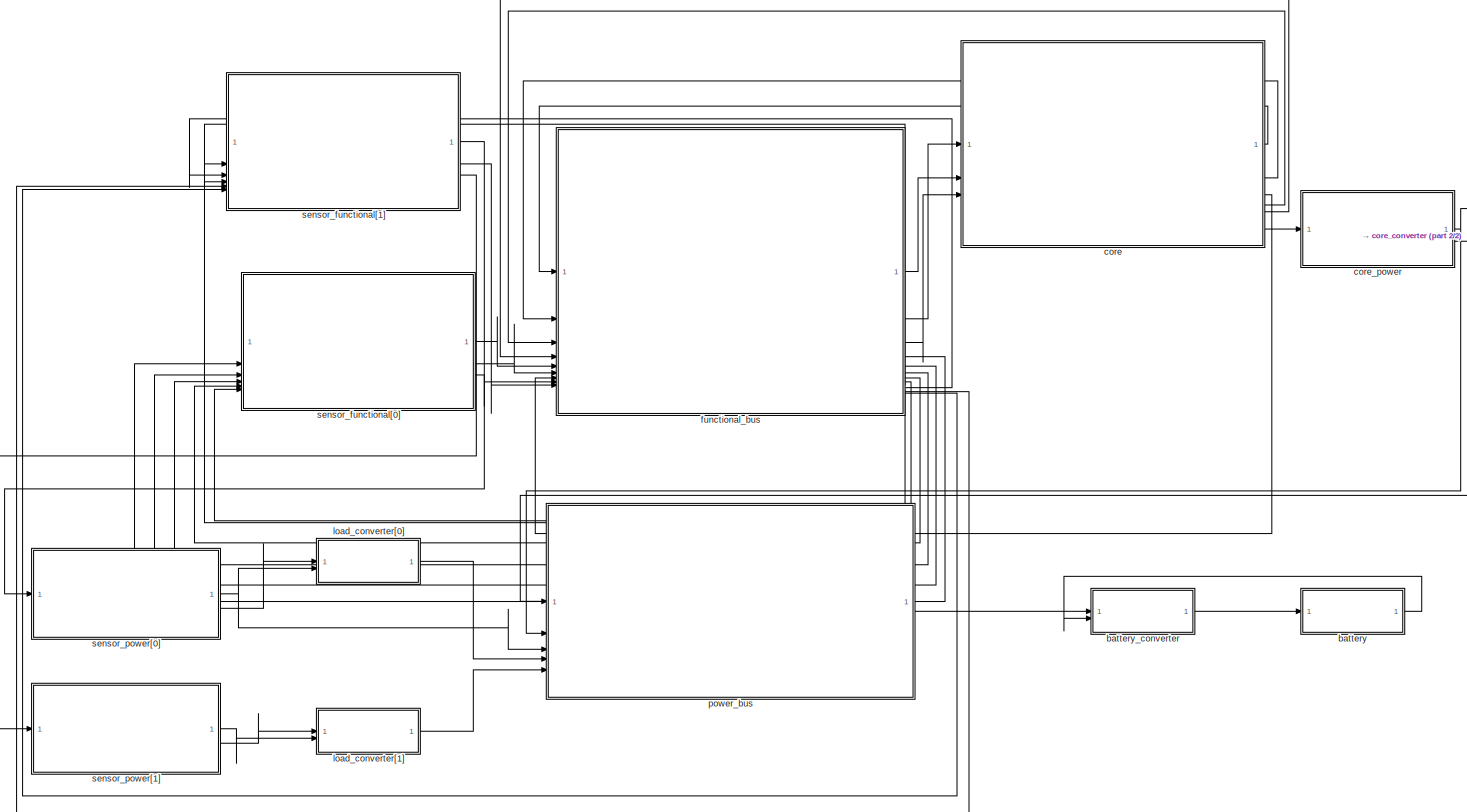
[diagram: root canvas - part 1/2, most of the canvas]
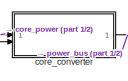
[diagram: root canvas - part 2/2, top right region]
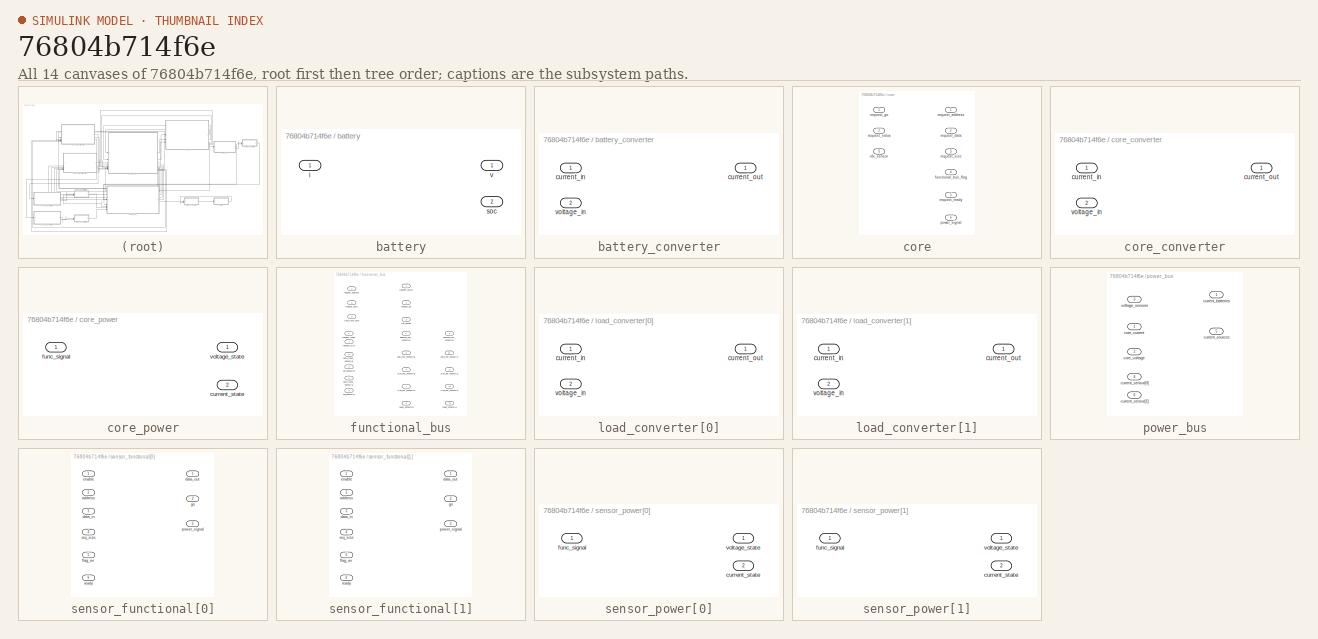
[diagram: thumbnail index - all 14 canvases of the model, root first then tree order]
MODEL slx_76804b714f6e
KIND model
CONFIG AbsTol = auto
CONFIG EnableMultiTasking = off
CONFIG FixedStep = auto
CONFIG MaxStep = auto
CONFIG MinStep = auto
CONFIG RelTol = 1e-3
CONFIG SampleTimeConstraint = Unconstrained
CONFIG SolverName = VariableStepAuto
CONFIG StartTime = 0.0
CONFIG StopTime = 10.0
BLOCK [SubSystem] battery
BLOCK [Inport] battery/i
BLOCK [Outport] battery/soc
  Port = 2
BLOCK [Outport] battery/v
BLOCK [SubSystem] battery_converter
BLOCK [Inport] battery_converter/current_in
BLOCK [Outport] battery_converter/current_out
BLOCK [Inport] battery_converter/voltage_in
  Port = 2
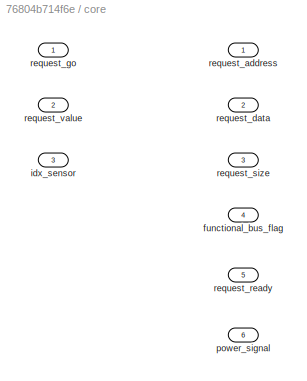
BLOCK [SubSystem] core
BLOCK [Outport] core/functional_bus_flag
  Port = 4
BLOCK [Inport] core/idx_sensor
  Port = 3
BLOCK [Outport] core/power_signal
  Port = 6
BLOCK [Outport] core/request_address
BLOCK [Outport] core/request_data
  Port = 2
BLOCK [Inport] core/request_go
BLOCK [Outport] core/request_ready
  Port = 5
BLOCK [Outport] core/request_size
  Port = 3
BLOCK [Inport] core/request_value
  Port = 2
BLOCK [SubSystem] core_converter
BLOCK [Inport] core_converter/current_in
BLOCK [Outport] core_converter/current_out
BLOCK [Inport] core_converter/voltage_in
  Port = 2
BLOCK [SubSystem] core_power
BLOCK [Outport] core_power/current_state
  Port = 2
BLOCK [Inport] core_power/func_signal
BLOCK [Outport] core_power/voltage_state
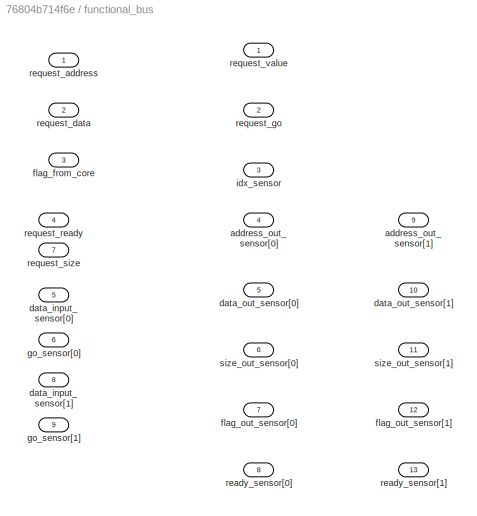
BLOCK [SubSystem] functional_bus
BLOCK [Outport] functional_bus/address_out_sensor[0]
  Port = 4
BLOCK [Outport] functional_bus/address_out_sensor[1]
  Port = 9
BLOCK [Inport] functional_bus/data_input_sensor[0]
  Port = 5
BLOCK [Inport] functional_bus/data_input_sensor[1]
  Port = 8
BLOCK [Outport] functional_bus/data_out_sensor[0]
  Port = 5
BLOCK [Outport] functional_bus/data_out_sensor[1]
  Port = 10
BLOCK [Inport] functional_bus/flag_from_core
  Port = 3
BLOCK [Outport] functional_bus/flag_out_sensor[0]
  Port = 7
BLOCK [Outport] functional_bus/flag_out_sensor[1]
  Port = 12
BLOCK [Inport] functional_bus/go_sensor[0]
  Port = 6
BLOCK [Inport] functional_bus/go_sensor[1]
  Port = 9
BLOCK [Outport] functional_bus/idx_sensor
  Port = 3
BLOCK [Outport] functional_bus/ready_sensor[0]
  Port = 8
BLOCK [Outport] functional_bus/ready_sensor[1]
  Port = 13
BLOCK [Inport] functional_bus/request_address
BLOCK [Inport] functional_bus/request_data
  Port = 2
BLOCK [Outport] functional_bus/request_go
  Port = 2
BLOCK [Inport] functional_bus/request_ready
  Port = 4
BLOCK [Inport] functional_bus/request_size
  Port = 7
BLOCK [Outport] functional_bus/request_value
BLOCK [Outport] functional_bus/size_out_sensor[0]
  Port = 6
BLOCK [Outport] functional_bus/size_out_sensor[1]
  Port = 11
BLOCK [SubSystem] load_converter[0]
BLOCK [Inport] load_converter[0]/current_in
BLOCK [Outport] load_converter[0]/current_out
BLOCK [Inport] load_converter[0]/voltage_in
  Port = 2
BLOCK [SubSystem] load_converter[1]
BLOCK [Inport] load_converter[1]/current_in
BLOCK [Outport] load_converter[1]/current_out
BLOCK [Inport] load_converter[1]/voltage_in
  Port = 2
BLOCK [SubSystem] power_bus
  ShowPortLabels = FromPortBlockName
BLOCK [Inport] power_bus/core_current
BLOCK [Inport] power_bus/core_voltage
  Port = 2
BLOCK [Outport] power_bus/current_batteries
BLOCK [Inport] power_bus/current_sensor[0]
  Port = 4
BLOCK [Inport] power_bus/current_sensor[1]
  Port = 6
BLOCK [Inport] power_bus/current_sources
  Port = 5
BLOCK [Inport] power_bus/voltage_sensors
  Port = 3
BLOCK [SubSystem] sensor_functional[0]
BLOCK [Inport] sensor_functional[0]/address
  Port = 2
BLOCK [Inport] sensor_functional[0]/data_in
  Port = 3
BLOCK [Outport] sensor_functional[0]/data_out
BLOCK [Inport] sensor_functional[0]/enable
BLOCK [Inport] sensor_functional[0]/flag_wr
  Port = 5
BLOCK [Outport] sensor_functional[0]/go
  Port = 2
BLOCK [Outport] sensor_functional[0]/power_signal
  Port = 3
BLOCK [Inport] sensor_functional[0]/ready
  Port = 6
BLOCK [Inport] sensor_functional[0]/req_size
  Port = 4
BLOCK [SubSystem] sensor_functional[1]
BLOCK [Inport] sensor_functional[1]/address
  Port = 2
BLOCK [Inport] sensor_functional[1]/data_in
  Port = 3
BLOCK [Outport] sensor_functional[1]/data_out
BLOCK [Inport] sensor_functional[1]/enable
BLOCK [Inport] sensor_functional[1]/flag_wr
  Port = 5
BLOCK [Outport] sensor_functional[1]/go
  Port = 2
BLOCK [Outport] sensor_functional[1]/power_signal
  Port = 3
BLOCK [Inport] sensor_functional[1]/ready
  Port = 6
BLOCK [Inport] sensor_functional[1]/req_size
  Port = 4
BLOCK [SubSystem] sensor_power[0]
BLOCK [Outport] sensor_power[0]/current_state
  Port = 2
BLOCK [Inport] sensor_power[0]/func_signal
BLOCK [Outport] sensor_power[0]/voltage_state
BLOCK [SubSystem] sensor_power[1]
BLOCK [Outport] sensor_power[1]/current_state
  Port = 2
BLOCK [Inport] sensor_power[1]/func_signal
BLOCK [Outport] sensor_power[1]/voltage_state
LINE battery:1 -> battery_converter:2
LINE battery_converter:1 -> battery:1
LINE core:1 -> functional_bus:1
LINE core:2 -> functional_bus:2
LINE core:3 -> functional_bus:7
LINE core:4 -> functional_bus:3
LINE core:5 -> functional_bus:4
LINE core:6 -> core_power:1
LINE core_converter:1 -> power_bus:1
NET core_power:1 -> core_converter:2, power_bus:2
LINE core_power:2 -> core_converter:1
LINE functional_bus:1 -> core:2
LINE functional_bus:10 -> sensor_functional[1]:3
LINE functional_bus:11 -> sensor_functional[1]:4
LINE functional_bus:12 -> sensor_functional[1]:5
LINE functional_bus:13 -> sensor_functional[1]:6
LINE functional_bus:2 -> core:1
LINE functional_bus:3 -> core:3
LINE functional_bus:4 -> sensor_functional[0]:2
LINE functional_bus:5 -> sensor_functional[0]:3
LINE functional_bus:6 -> sensor_functional[0]:4
LINE functional_bus:7 -> sensor_functional[0]:5
LINE functional_bus:8 -> sensor_functional[0]:6
LINE functional_bus:9 -> sensor_functional[1]:2
LINE load_converter[0]:1 -> power_bus:4
LINE load_converter[1]:1 -> power_bus:6
LINE power_bus:1 -> battery_converter:1
LINE sensor_functional[0]:1 -> functional_bus:5
LINE sensor_functional[0]:2 -> functional_bus:6
LINE sensor_functional[0]:3 -> sensor_power[0]:1
LINE sensor_functional[1]:1 -> functional_bus:8
LINE sensor_functional[1]:2 -> functional_bus:9
LINE sensor_functional[1]:3 -> sensor_power[1]:1
NET sensor_power[0]:1 -> load_converter[0]:2, power_bus:3
LINE sensor_power[0]:2 -> load_converter[0]:1
LINE sensor_power[1]:1 -> load_converter[1]:2
LINE sensor_power[1]:2 -> load_converter[1]:1
note: NET lines group one-source signal fan-out (src -> all destinations, sorted); 1:1 wires keep LINE
